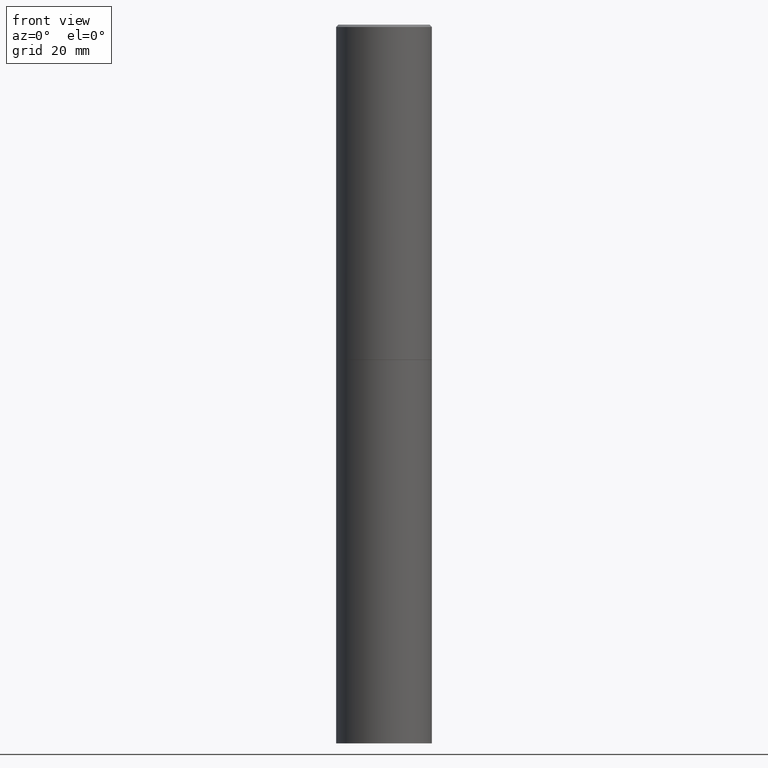
[diagram: clean part render]
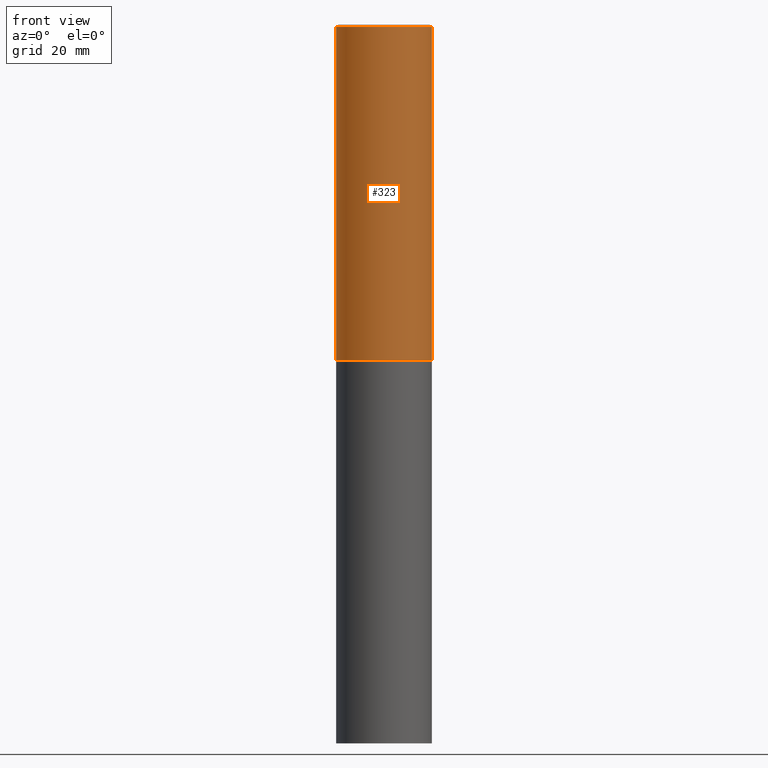
[diagram: same view with one face highlighted and labeled with its STEP entity id]
A machine part, front view. The second image highlights one B-rep face of the part: STEP entity #323.
In plain terms, the highlighted cylindrical surface (partial cylindrical patch) has radius 10 mm, axis along (-0, 0, 1).
Its self-contained STEP definition (entity closure, byte-faithful):
#9 = DIRECTION ( 'NONE',  ( 1.000000000000000000, -6.982962677686266711E-15, 4.876176775795935793E-29 ) ) ;
#14 = ORIENTED_EDGE ( 'NONE', *, *, #130, .T. ) ;
#19 = CIRCLE ( 'NONE', #231, 0.3937000000000000499 ) ;
#21 = VERTEX_POINT ( 'NONE', #38 ) ;
#25 = EDGE_CURVE ( 'NONE', #346, #21, #19, .T. ) ;
#31 = ORIENTED_EDGE ( 'NONE', *, *, #317, .F. ) ;
#33 = VERTEX_POINT ( 'NONE', #238 ) ;
#37 = CARTESIAN_POINT ( 'NONE',  ( 0.000000000000000000, 0.000000000000000000, 0.000000000000000000 ) ) ;
#38 = CARTESIAN_POINT ( 'NONE',  ( 0.3937000000000000499, -1.236787434658406460E-14, -2.754899999999999682 ) ) ;
#57 = DIRECTION ( 'NONE',  ( 1.000000000000000000, -6.982962677686266711E-15, 0.000000000000000000 ) ) ;
#73 = FACE_OUTER_BOUND ( 'NONE', #320, .T. ) ;
#89 = DIRECTION ( 'NONE',  ( -2.445468806185136877E-29, 3.491481338843145188E-15, 1.000000000000000000 ) ) ;
#97 = DIRECTION ( 'NONE',  ( -2.445468806185136597E-29, 3.491481338843145583E-15, 1.000000000000000000 ) ) ;
#109 = AXIS2_PLACEMENT_3D ( 'NONE', #37, #339, #9 ) ;
#116 = CARTESIAN_POINT ( 'NONE',  ( 0.3936999999999998279, -2.749192406205082033E-15, 1.919750796630859051E-29 ) ) ;
#130 = EDGE_CURVE ( 'NONE', #21, #33, #196, .T. ) ;
#132 = LINE ( 'NONE', #166, #220 ) ;
#140 = EDGE_CURVE ( 'NONE', #283, #33, #262, .T. ) ;
#166 = CARTESIAN_POINT ( 'NONE',  ( -0.3936999999999998279, 2.797406750687513209E-15, -1.936584745033355614E-29 ) ) ;
#187 = ORIENTED_EDGE ( 'NONE', *, *, #25, .T. ) ;
#196 = LINE ( 'NONE', #116, #355 ) ;
#210 = DIRECTION ( 'NONE',  ( 1.000000000000000000, -6.982962677686267499E-15, 0.000000000000000000 ) ) ;
#214 = CARTESIAN_POINT ( 'NONE',  ( 6.737022014159431508E-29, -9.618681940378979805E-15, -2.754899999999999682 ) ) ;
#220 = VECTOR ( 'NONE', #234, 39.37007874015748143 ) ;
#225 = DIRECTION ( 'NONE',  ( -2.445468806185136597E-29, 3.491481338843145583E-15, 1.000000000000000000 ) ) ;
#231 = AXIS2_PLACEMENT_3D ( 'NONE', #214, #97, #210 ) ;
#234 = DIRECTION ( 'NONE',  ( -2.445468806185136877E-29, 3.491481338843145188E-15, 1.000000000000000000 ) ) ;
#238 = CARTESIAN_POINT ( 'NONE',  ( 0.3936999999999996613, -2.770807688499512973E-15, -0.02000000000000008715 ) ) ;
#262 = CIRCLE ( 'NONE', #274, 0.3936999999999996613 ) ;
#263 = CARTESIAN_POINT ( 'NONE',  ( -0.3936999999999996613, 2.679362779428217552E-15, -0.02000000000000008715 ) ) ;
#274 = AXIS2_PLACEMENT_3D ( 'NONE', #275, #225, #57 ) ;
#275 = CARTESIAN_POINT ( 'NONE',  ( 4.890937612370294178E-31, -6.982962677686321191E-17, -0.02000000000000008715 ) ) ;
#283 = VERTEX_POINT ( 'NONE', #263 ) ;
#287 = ORIENTED_EDGE ( 'NONE', *, *, #140, .F. ) ;
#311 = CYLINDRICAL_SURFACE ( 'NONE', #109, 0.3936999999999998279 ) ;
#317 = EDGE_CURVE ( 'NONE', #346, #283, #132, .T. ) ;
#320 = EDGE_LOOP ( 'NONE', ( #31, #187, #14, #287 ) ) ;
#323 = ADVANCED_FACE ( 'NONE', ( #73 ), #311, .T. ) ;
#339 = DIRECTION ( 'NONE',  ( -2.445468806185136597E-29, 3.491481338843145583E-15, 1.000000000000000000 ) ) ;
#346 = VERTEX_POINT ( 'NONE', #353 ) ;
#353 = CARTESIAN_POINT ( 'NONE',  ( -0.3937000000000000499, -2.046849032890405582E-15, -2.754899999999999682 ) ) ;
#355 = VECTOR ( 'NONE', #89, 39.37007874015748143 ) ;